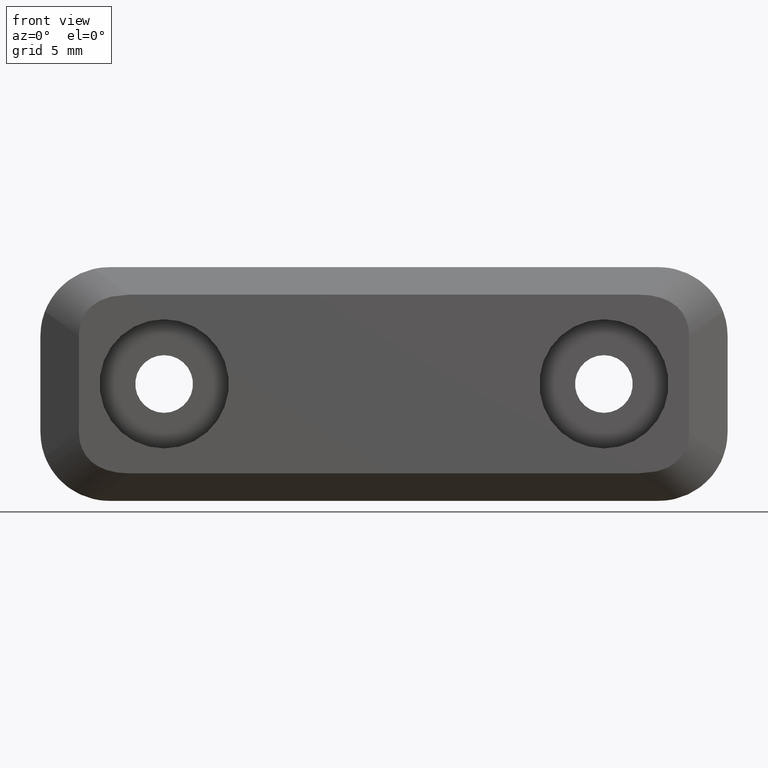
[diagram: clean part render]
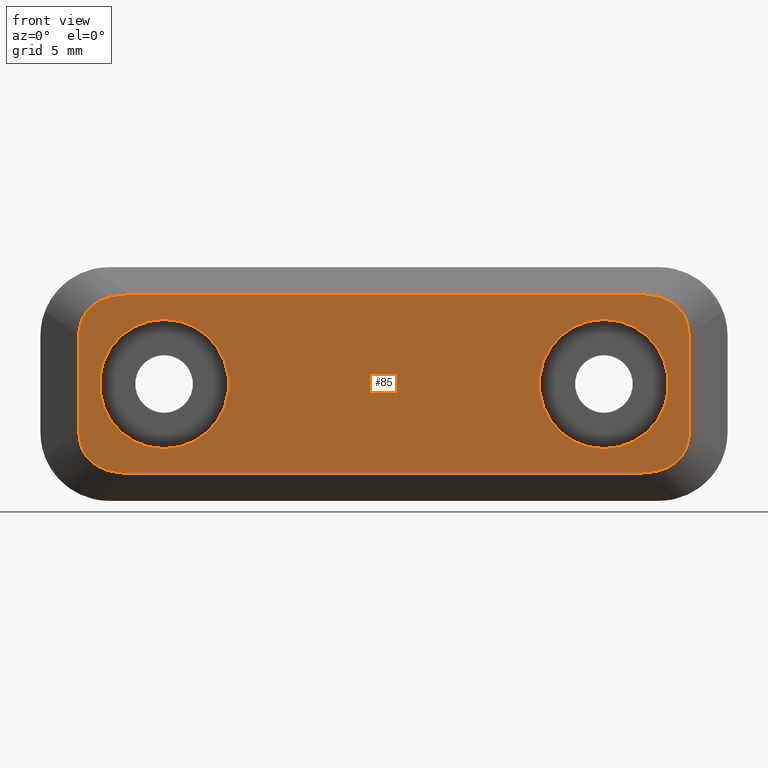
[diagram: same view with one face highlighted and labeled with its STEP entity id]
A machine part, front view. The second image highlights one B-rep face of the part: STEP entity #85.
In plain terms, the highlighted planar face has unit normal (0, 1, 0).
Its self-contained STEP definition (entity closure, byte-faithful):
#85=ADVANCED_FACE('',(#207,#208,#209),#206,.F.);
#206=PLANE('',#445);
#207=FACE_OUTER_BOUND('',#446,.T.);
#208=FACE_BOUND('',#447,.T.);
#209=FACE_BOUND('',#448,.T.);
#442=CARTESIAN_POINT('',(-2.66400000000E+01,-6.60000000000E+00,7.80000000000E+00));
#443=DIRECTION('',(-0.00000000000E+00,1.00000000000E+00,0.00000000000E+00));
#444=DIRECTION('',(1.00000000000E+00,0.00000000000E+00,0.00000000000E+00));
#445=AXIS2_PLACEMENT_3D('',#442,#443,#444);
#446=EDGE_LOOP('',(#589,#590,#591,#592,#593,#594,#595,#596));
#447=EDGE_LOOP('',(#597,#598));
#448=EDGE_LOOP('',(#599,#600));
#589=ORIENTED_EDGE('',*,*,#723,.T.);
#590=ORIENTED_EDGE('',*,*,#724,.T.);
#591=ORIENTED_EDGE('',*,*,#725,.T.);
#592=ORIENTED_EDGE('',*,*,#691,.T.);
#593=ORIENTED_EDGE('',*,*,#726,.T.);
#594=ORIENTED_EDGE('',*,*,#694,.T.);
#595=ORIENTED_EDGE('',*,*,#727,.T.);
#596=ORIENTED_EDGE('',*,*,#698,.T.);
#597=ORIENTED_EDGE('',*,*,#728,.F.);
#598=ORIENTED_EDGE('',*,*,#729,.F.);
#599=ORIENTED_EDGE('',*,*,#730,.T.);
#600=ORIENTED_EDGE('',*,*,#731,.T.);
#691=EDGE_CURVE('',#835,#836,#837,.T.);
#694=EDGE_CURVE('',#855,#856,#857,.T.);
#698=EDGE_CURVE('',#883,#884,#885,.T.);
#723=EDGE_CURVE('',#884,#1052,#1053,.T.);
#724=EDGE_CURVE('',#1052,#1059,#1060,.T.);
#725=EDGE_CURVE('',#1059,#835,#1066,.T.);
#726=EDGE_CURVE('',#836,#855,#1072,.T.);
#727=EDGE_CURVE('',#856,#883,#1078,.T.);
#728=EDGE_CURVE('',#1084,#1085,#1086,.T.);
#729=EDGE_CURVE('',#1085,#1084,#1092,.T.);
#730=EDGE_CURVE('',#1098,#1099,#1100,.T.);
#731=EDGE_CURVE('',#1099,#1098,#1106,.T.);
#835=VERTEX_POINT('',#1303);
#836=VERTEX_POINT('',#1304);
#837=(BOUNDED_CURVE() B_SPLINE_CURVE(2,(#1305,#1306,#1307),.UNSPECIFIED.,.F.,.F.) B_SPLINE_CURVE_WITH_KNOTS((3,3),(-6.62780402549E+00,-5.67009650294E+00),.UNSPECIFIED.) CURVE() GEOMETRIC_REPRESENTATION_ITEM() RATIONAL_B_SPLINE_CURVE((1.00000000000E+00,8.87523649141E-01,1.00000000000E+00)) REPRESENTATION_ITEM('') );
#855=VERTEX_POINT('',#1314);
#856=VERTEX_POINT('',#1315);
#857=(BOUNDED_CURVE() B_SPLINE_CURVE(2,(#1316,#1317,#1318),.UNSPECIFIED.,.F.,.F.) B_SPLINE_CURVE_WITH_KNOTS((3,3),(-3.75468145783E+00,-2.79697393528E+00),.UNSPECIFIED.) CURVE() GEOMETRIC_REPRESENTATION_ITEM() RATIONAL_B_SPLINE_CURVE((1.00000000000E+00,8.87523649141E-01,1.00000000000E+00)) REPRESENTATION_ITEM('') );
#883=VERTEX_POINT('',#1341);
#884=VERTEX_POINT('',#1342);
#885=(BOUNDED_CURVE() B_SPLINE_CURVE(2,(#1343,#1344,#1345),.UNSPECIFIED.,.F.,.F.) B_SPLINE_CURVE_WITH_KNOTS((3,3),(-6.62780402549E+00,-5.67009650294E+00),.UNSPECIFIED.) CURVE() GEOMETRIC_REPRESENTATION_ITEM() RATIONAL_B_SPLINE_CURVE((1.00000000000E+00,8.87523649141E-01,1.00000000000E+00)) REPRESENTATION_ITEM('') );
#1052=VERTEX_POINT('',#1456);
#1053=LINE('',#1457,#1458);
#1059=VERTEX_POINT('',#1460);
#1060=(BOUNDED_CURVE() B_SPLINE_CURVE(2,(#1461,#1462,#1463),.UNSPECIFIED.,.F.,.F.) B_SPLINE_CURVE_WITH_KNOTS((3,3),(-3.75468145783E+00,-2.79697393528E+00),.UNSPECIFIED.) CURVE() GEOMETRIC_REPRESENTATION_ITEM() RATIONAL_B_SPLINE_CURVE((1.00000000000E+00,8.87523649141E-01,1.00000000000E+00)) REPRESENTATION_ITEM('') );
#1066=LINE('',#1464,#1465);
#1072=LINE('',#1467,#1468);
#1078=LINE('',#1470,#1471);
#1084=VERTEX_POINT('',#1473);
#1085=VERTEX_POINT('',#1474);
#1086=CIRCLE('',#1478,4.70000000000E+00);
#1092=CIRCLE('',#1482,4.70000000000E+00);
#1098=VERTEX_POINT('',#1483);
#1099=VERTEX_POINT('',#1484);
#1100=CIRCLE('',#1488,4.70000000000E+00);
#1106=CIRCLE('',#1492,4.70000000000E+00);
#1303=CARTESIAN_POINT('',(2.22000000000E+01,-6.60000000000E+00,3.49759954417E+00));
#1304=CARTESIAN_POINT('',(1.85474222013E+01,-6.60000000000E+00,6.50000000000E+00));
#1305=CARTESIAN_POINT('',(2.22000000000E+01,-6.60000000000E+00,3.49759954417E+00));
#1306=CARTESIAN_POINT('',(2.22000000000E+01,-6.60000000000E+00,6.50000000000E+00));
#1307=CARTESIAN_POINT('',(1.85474222013E+01,-6.60000000000E+00,6.50000000000E+00));
#1314=CARTESIAN_POINT('',(-1.85474222013E+01,-6.60000000000E+00,6.50000000000E+00));
#1315=CARTESIAN_POINT('',(-2.22000000000E+01,-6.60000000000E+00,3.49759954417E+00));
#1316=CARTESIAN_POINT('',(-1.85474222013E+01,-6.60000000000E+00,6.50000000000E+00));
#1317=CARTESIAN_POINT('',(-2.22000000000E+01,-6.60000000000E+00,6.50000000000E+00));
#1318=CARTESIAN_POINT('',(-2.22000000000E+01,-6.60000000000E+00,3.49759954417E+00));
#1341=CARTESIAN_POINT('',(-2.22000000000E+01,-6.60000000000E+00,-3.49759954417E+00));
#1342=CARTESIAN_POINT('',(-1.85474222013E+01,-6.60000000000E+00,-6.50000000000E+00));
#1343=CARTESIAN_POINT('',(-2.22000000000E+01,-6.60000000000E+00,-3.49759954417E+00));
#1344=CARTESIAN_POINT('',(-2.22000000000E+01,-6.60000000000E+00,-6.50000000000E+00));
#1345=CARTESIAN_POINT('',(-1.85474222013E+01,-6.60000000000E+00,-6.50000000000E+00));
#1456=CARTESIAN_POINT('',(1.85474222013E+01,-6.60000000000E+00,-6.50000000000E+00));
#1457=CARTESIAN_POINT('',(-1.85474222013E+01,-6.60000000000E+00,-6.50000000000E+00));
#1458=VECTOR('',#1459,3.70948444025E+01);
#1459=DIRECTION('',(1.00000000000E+00,0.00000000000E+00,0.00000000000E+00));
#1460=CARTESIAN_POINT('',(2.22000000000E+01,-6.60000000000E+00,-3.49759954417E+00));
#1461=CARTESIAN_POINT('',(1.85474222013E+01,-6.60000000000E+00,-6.50000000000E+00));
#1462=CARTESIAN_POINT('',(2.22000000000E+01,-6.60000000000E+00,-6.50000000000E+00));
#1463=CARTESIAN_POINT('',(2.22000000000E+01,-6.60000000000E+00,-3.49759954417E+00));
#1464=CARTESIAN_POINT('',(2.22000000000E+01,-6.60000000000E+00,-3.49759954417E+00));
#1465=VECTOR('',#1466,6.99519908834E+00);
#1466=DIRECTION('',(-2.55970941142E-13,0.00000000000E+00,1.00000000000E+00));
#1467=CARTESIAN_POINT('',(1.85474222013E+01,-6.60000000000E+00,6.50000000000E+00));
#1468=VECTOR('',#1469,3.70948444025E+01);
#1469=DIRECTION('',(-1.00000000000E+00,0.00000000000E+00,0.00000000000E+00));
#1470=CARTESIAN_POINT('',(-2.22000000000E+01,-6.60000000000E+00,3.49759954417E+00));
#1471=VECTOR('',#1472,6.99519908834E+00);
#1472=DIRECTION('',(-4.78929756938E-13,0.00000000000E+00,-1.00000000000E+00));
#1473=CARTESIAN_POINT('',(1.60000000000E+01,-6.60000000000E+00,4.70000000000E+00));
#1474=CARTESIAN_POINT('',(1.60000000000E+01,-6.60000000000E+00,-4.70000000000E+00));
#1475=CARTESIAN_POINT('',(1.60000000000E+01,-6.60000000000E+00,0.00000000000E+00));
#1476=DIRECTION('',(0.00000000000E+00,-1.00000000000E+00,-0.00000000000E+00));
#1477=DIRECTION('',(-1.22460635382E-16,0.00000000000E+00,-1.00000000000E+00));
#1478=AXIS2_PLACEMENT_3D('',#1475,#1476,#1477);
#1479=CARTESIAN_POINT('',(1.60000000000E+01,-6.60000000000E+00,0.00000000000E+00));
#1480=DIRECTION('',(0.00000000000E+00,-1.00000000000E+00,-0.00000000000E+00));
#1481=DIRECTION('',(-1.22460635382E-16,0.00000000000E+00,-1.00000000000E+00));
#1482=AXIS2_PLACEMENT_3D('',#1479,#1480,#1481);
#1483=CARTESIAN_POINT('',(-1.60000000000E+01,-6.60000000000E+00,-4.70000000000E+00));
#1484=CARTESIAN_POINT('',(-1.60000000000E+01,-6.60000000000E+00,4.70000000000E+00));
#1485=CARTESIAN_POINT('',(-1.60000000000E+01,-6.60000000000E+00,0.00000000000E+00));
#1486=DIRECTION('',(0.00000000000E+00,1.00000000000E+00,0.00000000000E+00));
#1487=DIRECTION('',(1.22460635382E-16,0.00000000000E+00,-1.00000000000E+00));
#1488=AXIS2_PLACEMENT_3D('',#1485,#1486,#1487);
#1489=CARTESIAN_POINT('',(-1.60000000000E+01,-6.60000000000E+00,0.00000000000E+00));
#1490=DIRECTION('',(0.00000000000E+00,1.00000000000E+00,0.00000000000E+00));
#1491=DIRECTION('',(1.22460635382E-16,0.00000000000E+00,-1.00000000000E+00));
#1492=AXIS2_PLACEMENT_3D('',#1489,#1490,#1491);